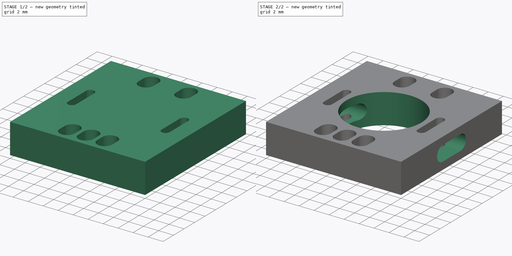
[diagram: build sequence overview — one tinted view per stage of 2, left to right]
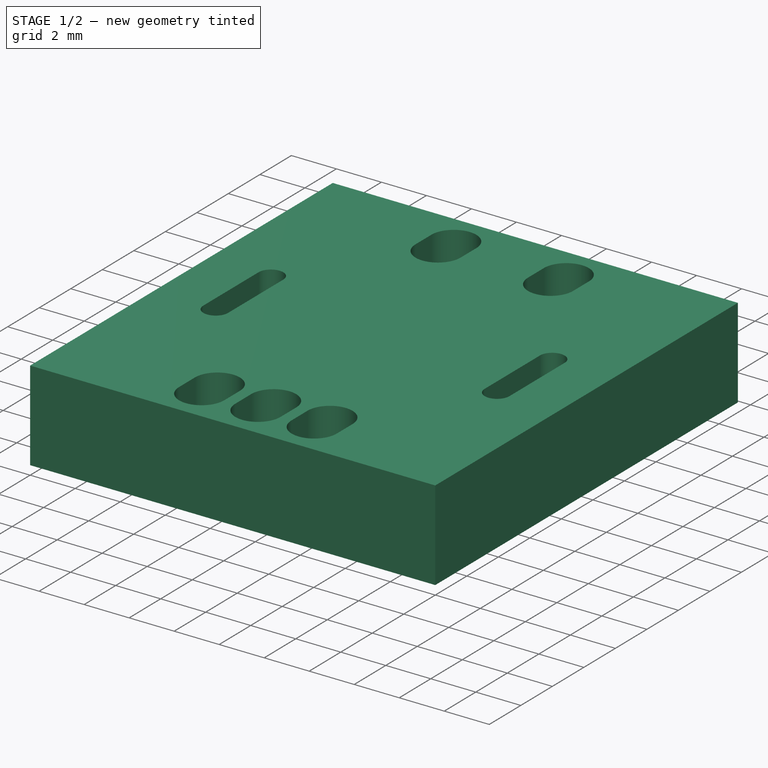
[diagram: stage 1 of 2 — iso view after this stage's code; geometry added in this stage tinted green]
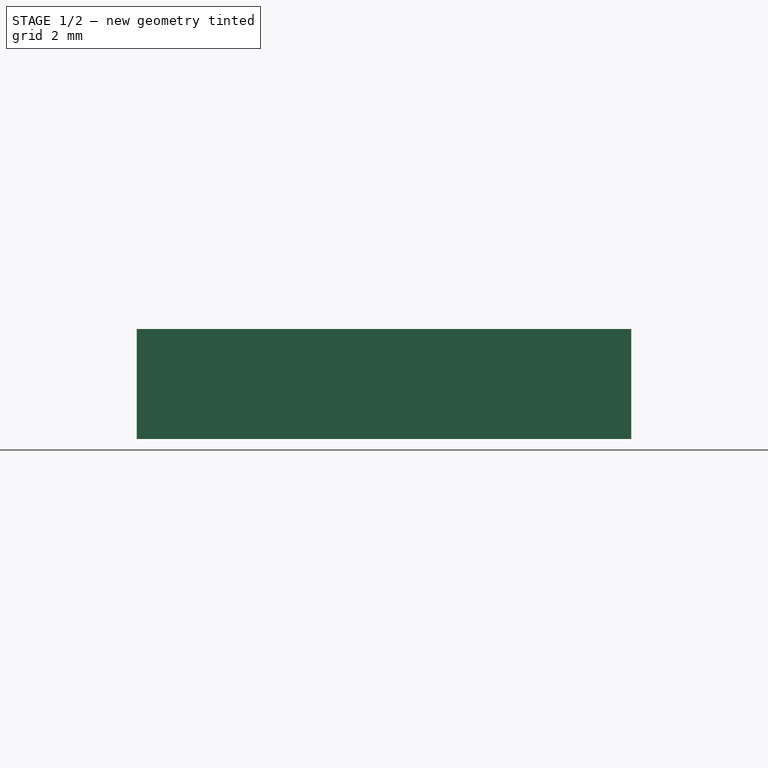
[diagram: stage 1 of 2 — front view after this stage's code; geometry added in this stage tinted green]
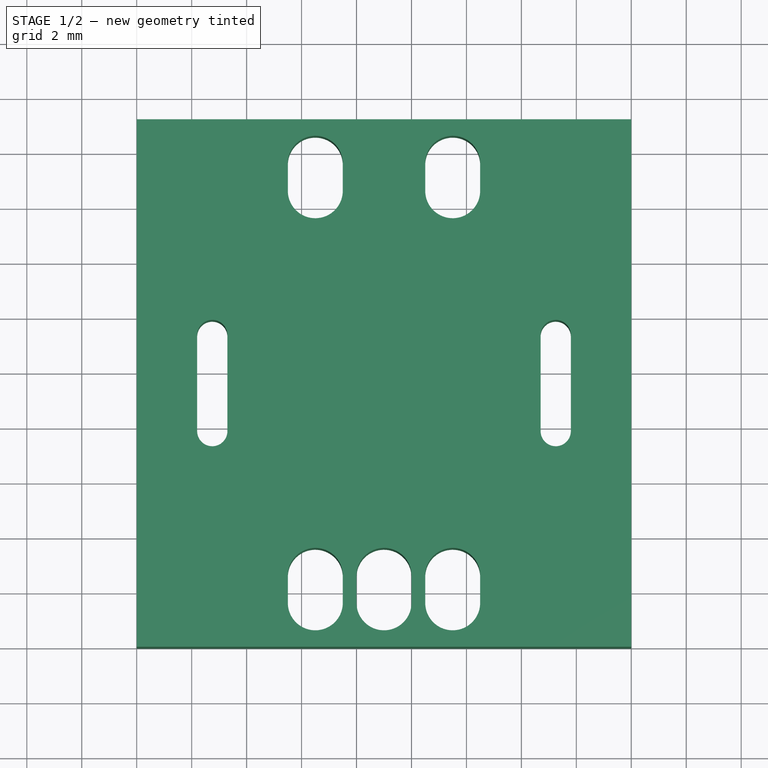
[diagram: stage 1 of 2 — top view after this stage's code; geometry added in this stage tinted green]
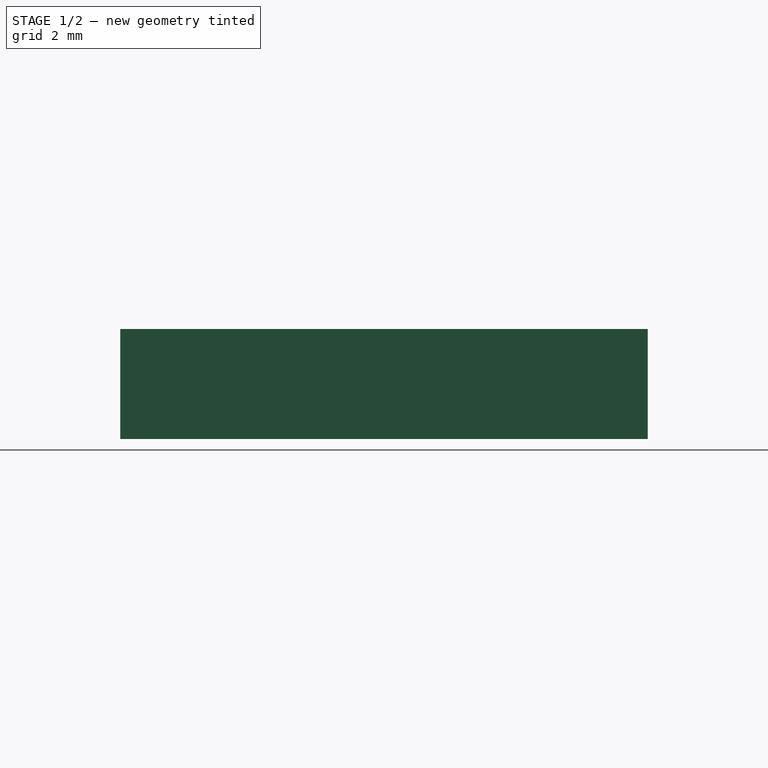
[diagram: stage 1 of 2 — right view after this stage's code; geometry added in this stage tinted green]
FCSTD DOCUMENT  (FreeCAD 0.20R)
Label: encoder-pin-protector
License: All rights reserved
LicenseURL: http://en.wikipedia.org/wiki/All_rights_reserved
objects: Sketcher::SketchObject×4, PartDesign::Pocket×3, PartDesign::Pad×1, Spreadsheet::Sheet×1, PartDesign::Plane×1, PartDesign::Body×1
note: 14 computed .brp shape members not serialized (recipe doc carries the construction recipe); baked Part::Feature solids carry a one-line shape summary decoded from their .brp

FEATURE [Sketcher::SketchObject] Sketch
  FullyConstrained = true
  MapMode = 5
  Support = -> [XY_Plane]
  expr: Constraints[10] = Spreadsheet.length
  expr: Constraints[9] = Spreadsheet.width
  sketch-geometry (4):
    g0: LineSegment StartX=0 StartY=0 StartZ=0 EndX=18 EndY=0 EndZ=0
    g1: LineSegment StartX=18 StartY=0 StartZ=0 EndX=18 EndY=19.2 EndZ=0
    g2: LineSegment StartX=18 StartY=19.2 StartZ=0 EndX=0 EndY=19.2 EndZ=0
    g3: LineSegment StartX=0 StartY=19.2 StartZ=0 EndX=0 EndY=0 EndZ=0
  constraints (11):
    c: Coincident(g0,g1)
    c: Coincident(g1,g2)
    c: Coincident(g2,g3)
    c: Coincident(g3,g0)
    c: Horizontal(g0)
    c: Horizontal(g2)
    c: Vertical(g1)
    c: Vertical(g3)
    c: Coincident(g0,g-1)
    c: DistanceX(g2,g2) = 18
    c: DistanceY(g3,g3) = 19.2
FEATURE [PartDesign::Pad] Pad
  Direction = (0,0,1)
  Length = 4
  Length2 = 10
  Profile = -> Sketch
  ReferenceAxis = -> Sketch [N_Axis]
  Type = 0
  expr: Length = Spreadsheet.height
FEATURE [Sketcher::SketchObject] Sketch001
  FullyConstrained = true
  MapMode = 5
  Support = -> [XY_Plane]
  expr: Constraints[10] = Spreadsheet.length
  expr: Constraints[94] = Spreadsheet.pin_slot_diameter
  expr: Constraints[99] = Spreadsheet.pin_slot_length
  expr: Constraints[9] = Spreadsheet.width
  sketch-geometry (45):
    g0: LineSegment StartX=0 StartY=0 StartZ=0 EndX=18 EndY=0 EndZ=0
    g1: LineSegment StartX=18 StartY=0 StartZ=0 EndX=18 EndY=19.2 EndZ=0
    g2: LineSegment StartX=18 StartY=19.2 StartZ=0 EndX=0 EndY=19.2 EndZ=0
    g3: LineSegment StartX=0 StartY=19.2 StartZ=0 EndX=0 EndY=0 EndZ=0
    g4: LineSegment StartX=0 StartY=2.6 StartZ=0 EndX=6.5 EndY=2.6 EndZ=0
    g5: LineSegment StartX=6.5 StartY=2.6 StartZ=0 EndX=9 EndY=2.6 EndZ=0
    g6: LineSegment StartX=9 StartY=2.6 StartZ=0 EndX=11.5 EndY=2.6 EndZ=0
    g7: LineSegment StartX=11.5 StartY=2.6 StartZ=0 EndX=18 EndY=2.6 EndZ=0
    g8: LineSegment StartX=0 StartY=16.6 StartZ=0 EndX=6.5 EndY=16.6 EndZ=0
    g9: LineSegment StartX=6.5 StartY=16.6 StartZ=0 EndX=11.5 EndY=16.6 EndZ=0
    g10: LineSegment StartX=11.5 StartY=16.6 StartZ=0 EndX=18 EndY=16.6 EndZ=0
    g11: LineSegment StartX=18 StartY=16.6 StartZ=0 EndX=18 EndY=19.2 EndZ=0
    g12: LineSegment StartX=18 StartY=2.6 StartZ=0 EndX=18 EndY=0 EndZ=0
    g13: ArcOfCircle CenterX=2.75 CenterY=11.35 CenterZ=0 NormalX=0 NormalY=0 NormalZ=1 AngleXU=0 Radius=0.55 StartAngle=-1.8e-15 EndAngle=3.14159
    g14: ArcOfCircle CenterX=2.75 CenterY=7.85 CenterZ=0 NormalX=0 NormalY=0 NormalZ=1 AngleXU=0 Radius=0.55 StartAngle=3.14159 EndAngle=6.28319
    g15: LineSegment StartX=2.2 StartY=11.35 StartZ=0 EndX=2.2 EndY=7.85 EndZ=0
    g16: LineSegment StartX=3.3 StartY=7.85 StartZ=0 EndX=3.3 EndY=11.35 EndZ=0
    g17: ArcOfCircle CenterX=15.25 CenterY=11.35 CenterZ=0 NormalX=0 NormalY=0 NormalZ=1 AngleXU=0 Radius=0.55 StartAngle=-1.421e-13 EndAngle=3.14159
    g18: ArcOfCircle CenterX=15.25 CenterY=7.85 CenterZ=0 NormalX=0 NormalY=0 NormalZ=1 AngleXU=0 Radius=0.55 StartAngle=3.14159 EndAngle=6.28319
    g19: LineSegment StartX=14.7 StartY=11.35 StartZ=0 EndX=14.7 EndY=7.85 EndZ=0
    g20: LineSegment StartX=15.8 StartY=7.85 StartZ=0 EndX=15.8 EndY=11.35 EndZ=0
    g21: ArcOfCircle CenterX=6.5 CenterY=16.6 CenterZ=0 NormalX=0 NormalY=0 NormalZ=1 AngleXU=0 Radius=1 StartAngle=3.14159 EndAngle=6.28319
    g22: ArcOfCircle CenterX=6.5 CenterY=17.6 CenterZ=0 NormalX=0 NormalY=0 NormalZ=1 AngleXU=0 Radius=1 StartAngle=7e-16 EndAngle=3.14159
    g23: LineSegment StartX=7.5 StartY=16.6 StartZ=0 EndX=7.5 EndY=17.6 EndZ=0
    g24: LineSegment StartX=5.5 StartY=17.6 StartZ=0 EndX=5.5 EndY=16.6 EndZ=0
    g25: ArcOfCircle CenterX=11.5 CenterY=16.6 CenterZ=0 NormalX=0 NormalY=0 NormalZ=1 AngleXU=0 Radius=1 StartAngle=3.14159 EndAngle=6.28319
    g26: ArcOfCircle CenterX=11.5 CenterY=17.6 CenterZ=0 NormalX=0 NormalY=0 NormalZ=1 AngleXU=0 Radius=1 StartAngle=6e-16 EndAngle=3.14159
    g27: LineSegment StartX=12.5 StartY=16.6 StartZ=0 EndX=12.5 EndY=17.6 EndZ=0
    g28: LineSegment StartX=10.5 StartY=17.6 StartZ=0 EndX=10.5 EndY=16.6 EndZ=0
    g29: ArcOfCircle CenterX=11.5 CenterY=2.6 CenterZ=0 NormalX=0 NormalY=0 NormalZ=1 AngleXU=0 Radius=1 StartAngle=0 EndAngle=3.14159
    g30: ArcOfCircle CenterX=11.5 CenterY=1.6 CenterZ=0 NormalX=0 NormalY=0 NormalZ=1 AngleXU=0 Radius=1 StartAngle=3.14159 EndAngle=6.28319
    g31: LineSegment StartX=10.5 StartY=2.6 StartZ=0 EndX=10.5 EndY=1.6 EndZ=0
    g32: LineSegment StartX=12.5 StartY=1.6 StartZ=0 EndX=12.5 EndY=2.6 EndZ=0
    g33: ArcOfCircle CenterX=9 CenterY=2.6 CenterZ=0 NormalX=0 NormalY=0 NormalZ=1 AngleXU=0 Radius=1 StartAngle=0 EndAngle=3.14159
    g34: ArcOfCircle CenterX=9 CenterY=1.6 CenterZ=0 NormalX=0 NormalY=0 NormalZ=1 AngleXU=0 Radius=1 StartAngle=3.14159 EndAngle=6.28319
    g35: LineSegment StartX=8 StartY=2.6 StartZ=0 EndX=8 EndY=1.6 EndZ=0
    g36: LineSegment StartX=10 StartY=1.6 StartZ=0 EndX=10 EndY=2.6 EndZ=0
    g37: ArcOfCircle CenterX=6.5 CenterY=2.6 CenterZ=0 NormalX=0 NormalY=0 NormalZ=1 AngleXU=0 Radius=1 StartAngle=0 EndAngle=3.14159
    g38: ArcOfCircle CenterX=6.5 CenterY=1.6 CenterZ=0 NormalX=0 NormalY=0 NormalZ=1 AngleXU=0 Radius=1 StartAngle=3.14159 EndAngle=6.28319
    g39: LineSegment StartX=5.5 StartY=2.6 StartZ=0 EndX=5.5 EndY=1.6 EndZ=0
    g40: LineSegment StartX=7.5 StartY=1.6 StartZ=0 EndX=7.5 EndY=2.6 EndZ=0
    g41: LineSegment StartX=2.75 StartY=11.35 StartZ=0 EndX=2.75 EndY=16.6 EndZ=0
    g42: LineSegment StartX=2.75 StartY=7.85 StartZ=0 EndX=2.75 EndY=2.6 EndZ=0
    g43: LineSegment StartX=2.75 StartY=7.85 StartZ=0 EndX=0 EndY=7.85 EndZ=0
    g44: LineSegment StartX=15.25 StartY=7.85 StartZ=0 EndX=18 EndY=7.85 EndZ=0
  constraints (115):
    c: Coincident(g0,g1)
    c: Coincident(g1,g2)
    c: Coincident(g2,g3)
    c: Coincident(g3,g0)
    c: Horizontal(g0)
    c: Horizontal(g2)
    c: Vertical(g1)
    c: Vertical(g3)
    c: Coincident(g0,g-1)
    c: DistanceX(g2,g2) = 18
    c: DistanceY(g1,g1) = 19.2
    c: PointOnObject(g4,g3)
    c: Horizontal(g4)
    c: Coincident(g4,g5)
    c: Coincident(g5,g6)
    c: Coincident(g6,g7)
    c: PointOnObject(g7,g1)
    c: PointOnObject(g8,g3)
    c: Horizontal(g8)
    c: Coincident(g8,g9)
    c: Coincident(g9,g10)
    c: PointOnObject(g10,g1)
    c: Horizontal(g10)
    c: Horizontal(g5)
    c: Horizontal(g6)
    c: Horizontal(g7)
    c: Horizontal(g9)
    c: DistanceX(g5,g5) = 2.5
    c: DistanceX(g6,g6) = 2.5
    c: DistanceX(g9,g9) = 5
    c: Equal(g8,g10)
    c: Equal(g7,g4)
    c: Distance(g10,g7) = 14
    c: Coincident(g11,g10)
    c: Coincident(g11,g1)
    c: Coincident(g12,g7)
    c: Coincident(g12,g0)
    c: Equal(g11,g12)
    c: Tangent(g13,g15) = -1.5708
    c: Tangent(g15,g14) = -1.5708
    c: Tangent(g14,g16) = -1.5708
    c: Tangent(g16,g13) = -1.5708
    c: Equal(g13,g14)
    c: Tangent(g17,g19) = -1.5708
    c: Tangent(g19,g18) = -1.5708
    c: Tangent(g18,g20) = -1.5708
    c: Tangent(g20,g17) = -1.5708
    c: Equal(g17,g18)
    c: Vertical(g16)
    c: Vertical(g19)
    c: Equal(g17,g13)
    c: Equal(g16,g19)
    c: Horizontal(g17,g13)
    c: Diameter(g13) = 1.1
    c: Distance(g13,g14) = 3.5
    c: Tangent(g21,g23) = -1.5708
    c: Tangent(g23,g22) = -1.5708
    c: Tangent(g22,g24) = -1.5708
    c: Tangent(g24,g21) = -1.5708
    c: Equal(g21,g22)
    c: Coincident(g21,g8)
    c: Tangent(g25,g27) = -1.5708
    c: Tangent(g27,g26) = -1.5708
    c: Tangent(g26,g28) = -1.5708
    c: Tangent(g28,g25) = -1.5708
    c: Equal(g25,g26)
    c: Coincident(g25,g9)
    c: Tangent(g29,g31) = -1.5708
    c: Tangent(g31,g30) = -1.5708
    c: Tangent(g30,g32) = -1.5708
    c: Tangent(g32,g29) = -1.5708
    c: Equal(g29,g30)
    c: Coincident(g29,g6)
    c: Tangent(g33,g35) = -1.5708
    c: Tangent(g35,g34) = -1.5708
    c: Tangent(g34,g36) = -1.5708
    c: Tangent(g36,g33) = -1.5708
    c: Equal(g33,g34)
    c: Coincident(g33,g5)
    c: Vertical(g35)
    c: Tangent(g37,g39) = -1.5708
    c: Tangent(g39,g38) = -1.5708
    c: Tangent(g38,g40) = -1.5708
    c: Tangent(g40,g37) = -1.5708
    c: Equal(g37,g38)
    c: Coincident(g37,g4)
    c: Vertical(g39)
    c: Vertical(g31)
    c: Vertical(g23)
    c: Vertical(g27)
    c: Equal(g21,g25)
    c: Equal(g25,g29)
    c: Equal(g29,g33)
    c: Equal(g33,g37)
    c: Diameter(g21) = 2
    c: Equal(g23,g28)
    c: Equal(g28,g32)
    c: Equal(g32,g36)
    c: Equal(g36,g40)
    c: DistanceY(g24,g24) = 1
    c: DistanceX(g13,g17) = 12.5
    c: Coincident(g41,g13)
    c: PointOnObject(g41,g8)
    c: Vertical(g41)
    c: Coincident(g42,g14)
    c: PointOnObject(g42,g4)
    c: Vertical(g42)
    c: Equal(g42,g41)
    c: Coincident(g43,g14)
    c: PointOnObject(g43,g3)
    c: Horizontal(g43)
    c: Coincident(g44,g18)
    c: PointOnObject(g44,g1)
    c: Horizontal(g44)
    c: Equal(g44,g43)
FEATURE [Spreadsheet::Sheet] Spreadsheet
  cells = A1=width; B1(width)==14 + 2 * 2; A2=length; B2(length)==13.2 + 2 * 3; A3=height; B3(height)=4; A4=pin_slot_diameter; B4(pin_slot_diameter)=2; A5=pin_slot_length; B5(pin_slot_length)=1
FEATURE [PartDesign::Pocket] Pocket
  BaseFeature = -> Pad
  Direction = (0,0,-1)
  Length = 5
  Length2 = 5
  Midplane = true
  Profile = -> Sketch001
  ReferenceAxis = -> Sketch001 [N_Axis]
  Type = 1
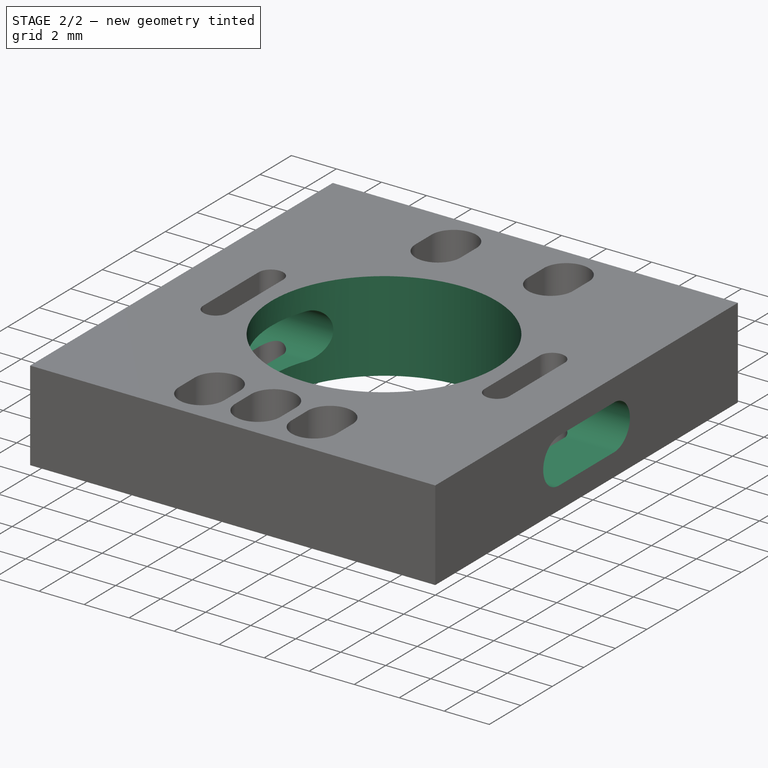
[diagram: stage 2 of 2 — iso view after this stage's code; geometry added in this stage tinted green]
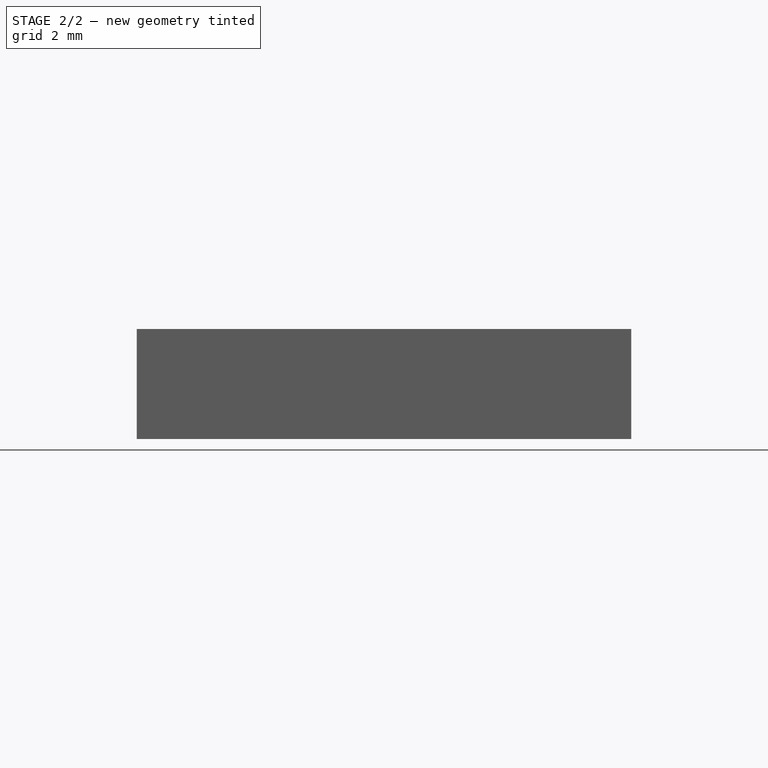
[diagram: stage 2 of 2 — front view after this stage's code; geometry added in this stage tinted green]
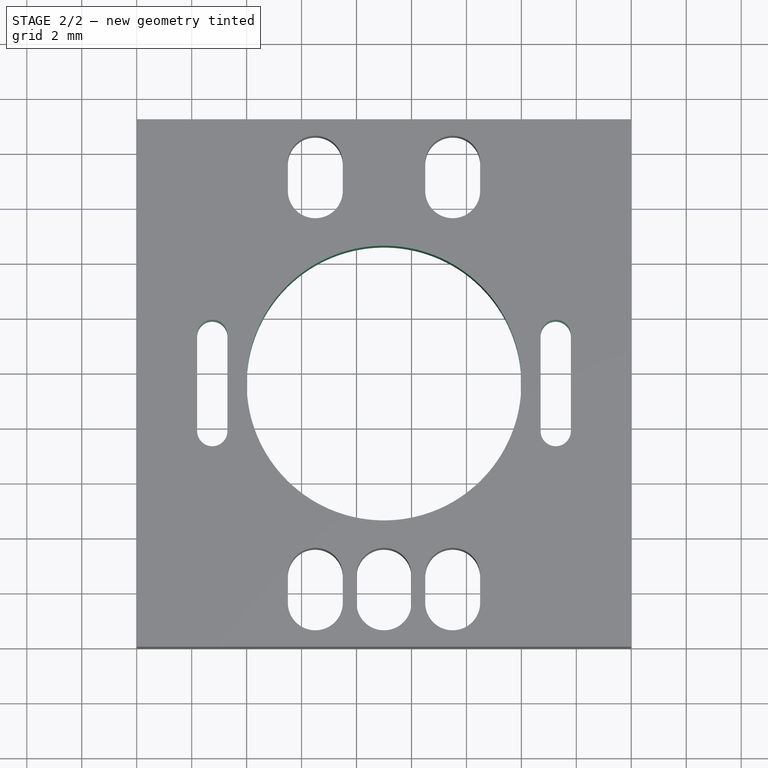
[diagram: stage 2 of 2 — top view after this stage's code; geometry added in this stage tinted green]
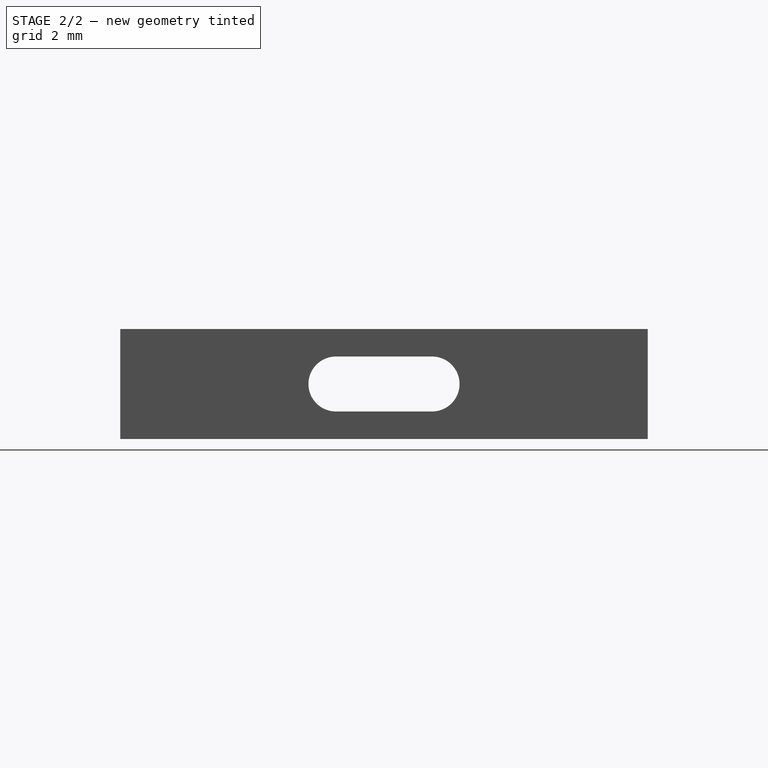
[diagram: stage 2 of 2 — right view after this stage's code; geometry added in this stage tinted green]
FEATURE [Sketcher::SketchObject] Sketch002
  FullyConstrained = true
  MapMode = 5
  Placement = pos=(0,0,0) rot=(0.57735,0.57735,0.57735;2.0944rad)
  Support = -> [YZ_Plane]
  expr: Constraints[10] = Spreadsheet.height
  expr: Constraints[9] = Spreadsheet.length
  sketch-geometry (10):
    g0: LineSegment StartX=0 StartY=0 StartZ=0 EndX=19.2 EndY=0 EndZ=0
    g1: LineSegment StartX=19.2 StartY=0 StartZ=0 EndX=19.2 EndY=4 EndZ=0
    g2: LineSegment StartX=19.2 StartY=4 StartZ=0 EndX=0 EndY=4 EndZ=0
    g3: LineSegment StartX=0 StartY=4 StartZ=0 EndX=0 EndY=0 EndZ=0
    g4: ArcOfCircle CenterX=7.85 CenterY=2 CenterZ=0 NormalX=0 NormalY=0 NormalZ=1 AngleXU=0 Radius=1 StartAngle=1.5708 EndAngle=4.71239
    g5: ArcOfCircle CenterX=11.35 CenterY=2 CenterZ=0 NormalX=0 NormalY=0 NormalZ=1 AngleXU=0 Radius=1 StartAngle=4.71239 EndAngle=7.85398
    g6: LineSegment StartX=7.85 StartY=1 StartZ=0 EndX=11.35 EndY=1 EndZ=0
    g7: LineSegment StartX=11.35 StartY=3 StartZ=0 EndX=7.85 EndY=3 EndZ=0
    g8: LineSegment StartX=7.85 StartY=2 StartZ=0 EndX=0 EndY=2 EndZ=0
    g9: LineSegment StartX=11.35 StartY=2 StartZ=0 EndX=19.2 EndY=2 EndZ=0
  constraints (27):
    c: Coincident(g0,g1)
    c: Coincident(g1,g2)
    c: Coincident(g2,g3)
    c: Coincident(g3,g0)
    c: Horizontal(g0)
    c: Horizontal(g2)
    c: Vertical(g1)
    c: Vertical(g3)
    c: Coincident(g0,g-1)
    c: DistanceX(g2,g2) = 19.2
    c: DistanceY(g1,g1) = 4
    c: Tangent(g4,g6) = -1.5708
    c: Tangent(g6,g5) = -1.5708
    c: Tangent(g5,g7) = -1.5708
    c: Tangent(g7,g4) = -1.5708
    c: Equal(g4,g5)
    c: Horizontal(g6)
    c: Coincident(g8,g4)
    c: PointOnObject(g8,g3)
    c: Horizontal(g8)
    c: Coincident(g9,g5)
    c: PointOnObject(g9,g1)
    c: Horizontal(g9)
    c: Diameter(g5) = 2
    c: DistanceX(g7,g7) = 3.5
    c: Equal(g9,g8)
    c: Distance(g4,g2) = 2
FEATURE [PartDesign::Pocket] Pocket001
  BaseFeature = -> Pocket
  Direction = (-1,2e-16,-3e-16)
  Length = 0
  Length2 = 5
  Midplane = true
  Profile = -> Sketch002
  ReferenceAxis = -> Sketch002 [N_Axis]
  Type = 1
FEATURE [PartDesign::Plane] DatumPlane
  AttachmentOffset = pos=(0,0,4) rot=(0,0,1;0rad)
  Length = 60
  MapMode = 5
  Placement = pos=(0,0,4) rot=(0,0,1;0rad)
  ResizeMode = 0
  Support = -> [XY_Plane]
  Width = 60
  expr: .AttachmentOffset.Base.z = Spreadsheet.height
FEATURE [Sketcher::SketchObject] Sketch003
  FullyConstrained = true
  MapMode = 5
  Placement = pos=(0,0,4) rot=(0,0,1;0rad)
  Support = -> [DatumPlane]
  expr: Constraints[10] = Spreadsheet.width
  expr: Constraints[9] = Spreadsheet.length
  sketch-geometry (7):
    g0: LineSegment StartX=0 StartY=0 StartZ=0 EndX=18 EndY=0 EndZ=0
    g1: LineSegment StartX=18 StartY=0 StartZ=0 EndX=18 EndY=19.2 EndZ=0
    g2: LineSegment StartX=18 StartY=19.2 StartZ=0 EndX=0 EndY=19.2 EndZ=0
    g3: LineSegment StartX=0 StartY=19.2 StartZ=0 EndX=0 EndY=0 EndZ=0
    g4: LineSegment StartX=0 StartY=19.2 StartZ=0 EndX=18 EndY=0 EndZ=0
    g5: LineSegment StartX=0 StartY=0 StartZ=0 EndX=18 EndY=19.2 EndZ=0
    g6: Circle CenterX=9 CenterY=9.6 CenterZ=0 NormalX=0 NormalY=0 NormalZ=1 AngleXU=0 Radius=5
  constraints (18):
    c: Coincident(g0,g1)
    c: Coincident(g1,g2)
    c: Coincident(g2,g3)
    c: Coincident(g3,g0)
    c: Horizontal(g0)
    c: Horizontal(g2)
    c: Vertical(g1)
    c: Vertical(g3)
    c: Coincident(g0,g-1)
    c: DistanceY(g1,g1) = 19.2
    c: DistanceX(g2,g2) = 18
    c: Coincident(g4,g2)
    c: Coincident(g4,g0)
    c: Coincident(g5,g0)
    c: Coincident(g5,g1)
    c: PointOnObject(g6,g4)
    c: PointOnObject(g6,g5)
    c: Diameter(g6) = 10
FEATURE [PartDesign::Pocket] Pocket002
  BaseFeature = -> Pocket001
  Direction = (0,0,-1)
  Length = 5
  Length2 = 5
  Profile = -> Sketch003
  ReferenceAxis = -> Sketch003 [N_Axis]
  Type = 1
FEATURE [PartDesign::Body] Body
  Group = -> [Sketch,Pad,Sketch001,Pocket,Sketch002,Pocket001,DatumPlane,Sketch003,Pocket002]
  Origin = -> Origin
  Tip = -> Pocket002
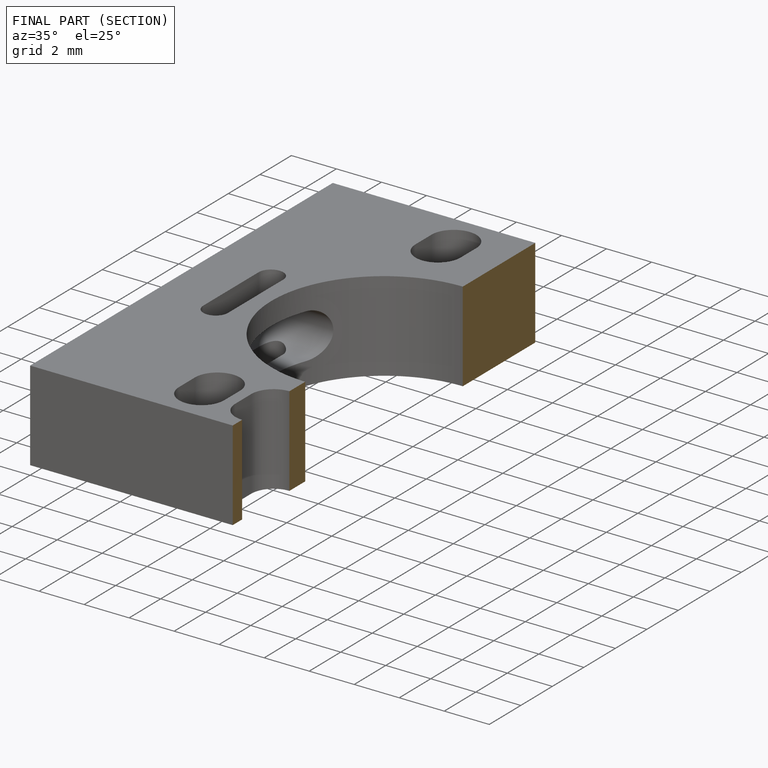
[diagram: finished part — half-section view (interior)]
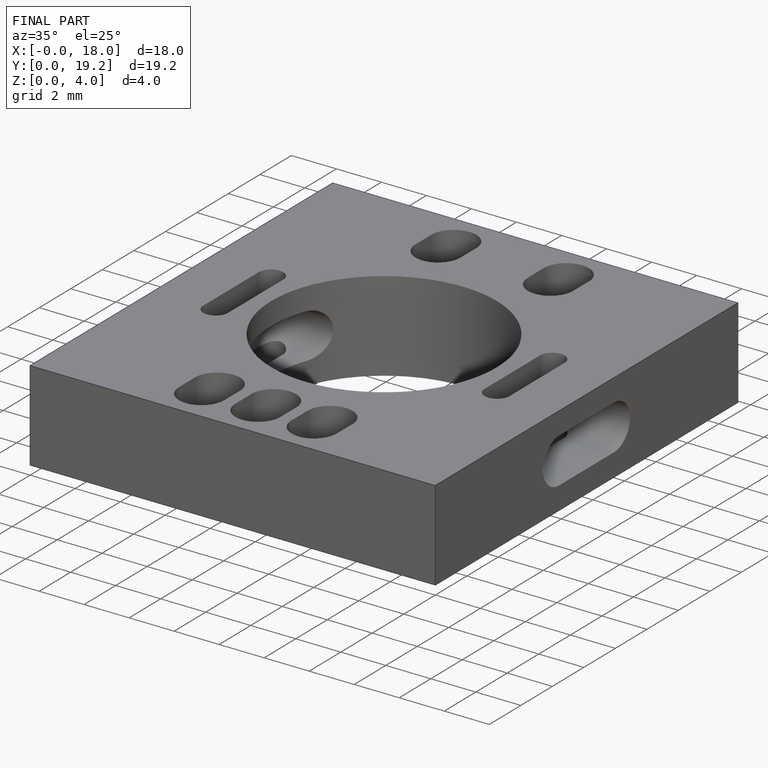
[diagram: finished part — iso view with bounding-box wireframe]
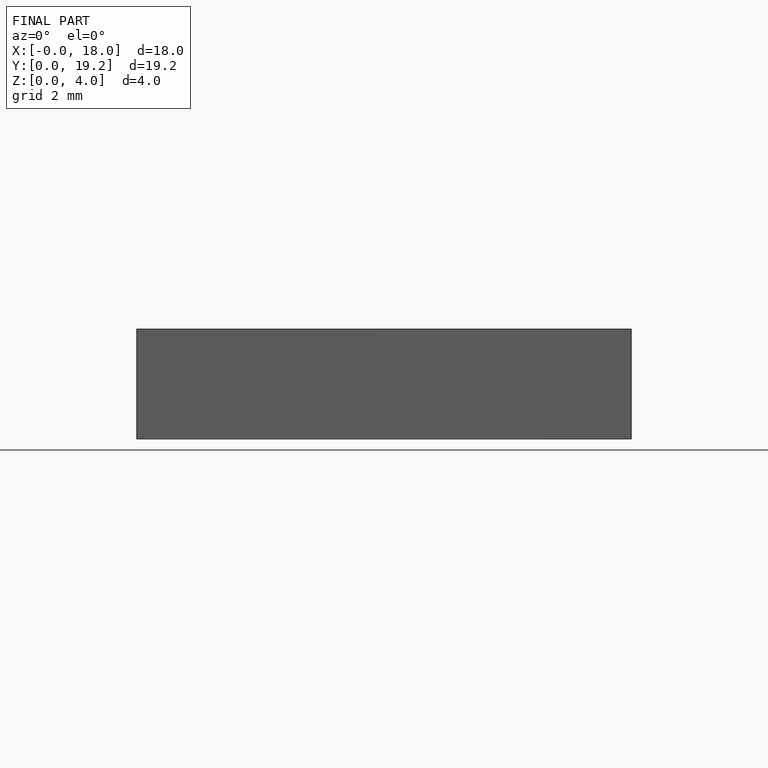
[diagram: finished part — front view with bounding-box wireframe]
